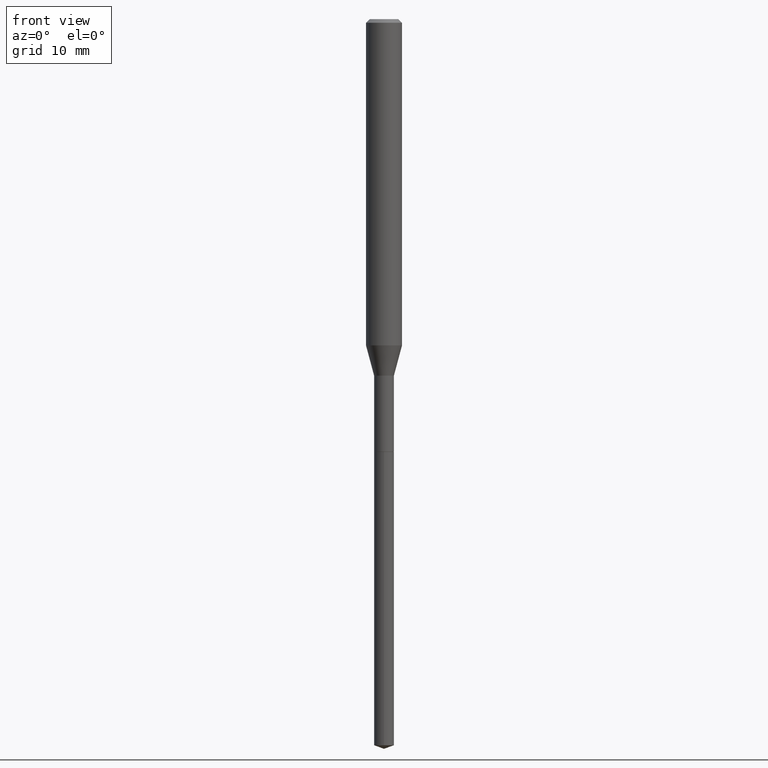
[diagram: clean part render]
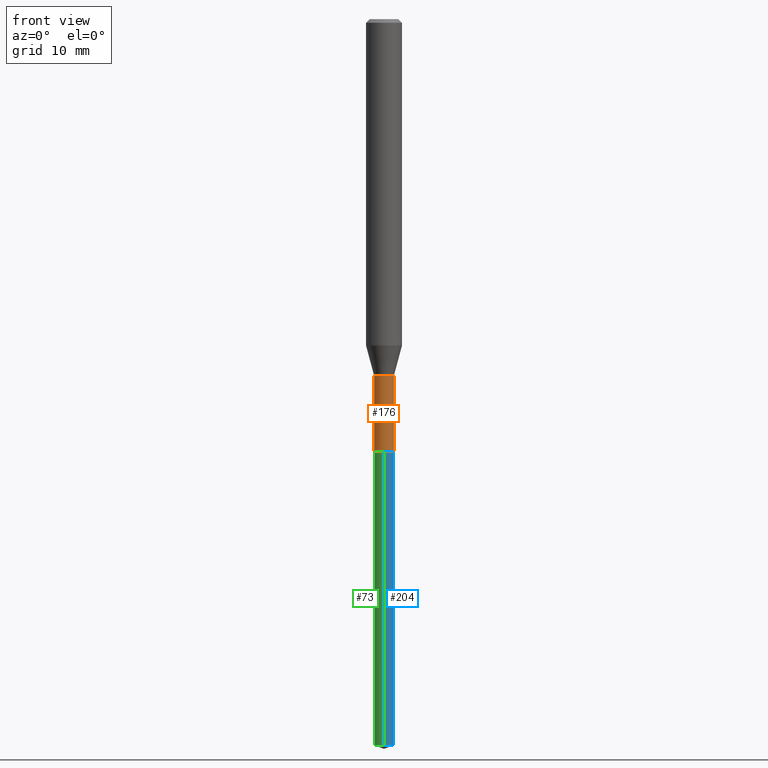
[diagram: same view with three faces highlighted in distinct colors, each labeled with its STEP entity id]
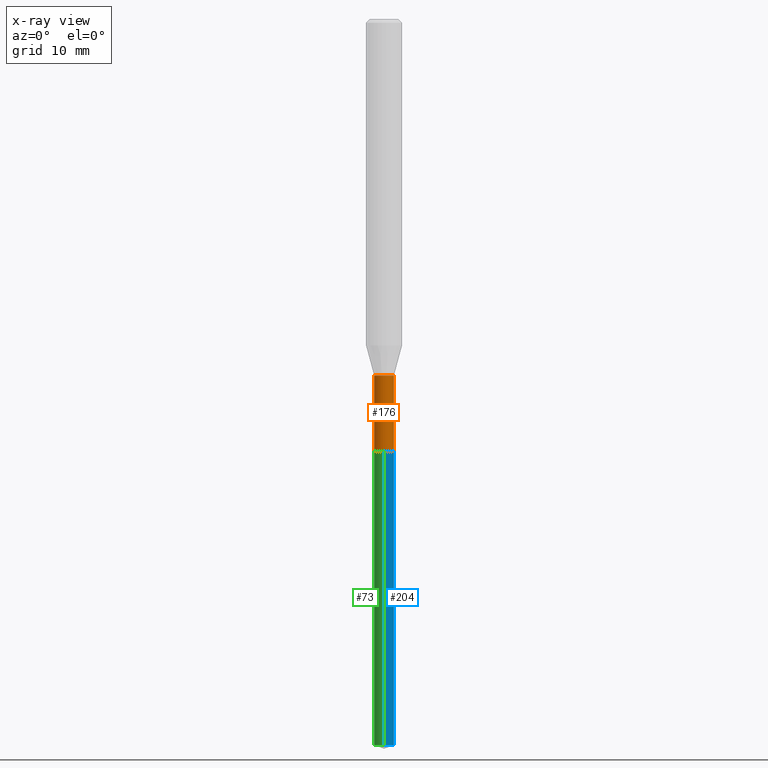
[diagram: x-ray of the same camera — body ghosted, the three highlighted faces saturated]
A machine part, front view with three faces highlighted in distinct colors.
The next image is the same camera in x-ray (body ghosted, the three faces saturated) — at least one of them is partly hidden behind the body in this view.
Their STEP definitions:

[orange] entity #176 — the highlighted cylindrical surface (edge-blend (fillet) strip) has radius 1.0998 mm, axis along (-0, 0, 1).
#2 = DIRECTION ( 'NONE',  ( 1.000000000000000000, -6.982962677686267499E-15, 4.876176775795935232E-29 ) ) ;
#24 = DIRECTION ( 'NONE',  ( -2.445468806185136877E-29, 3.491481338843145188E-15, 1.000000000000000000 ) ) ;
#30 = CARTESIAN_POINT ( 'NONE',  ( 0.04329999999999994270, -5.741741061727553218E-15, -1.557900000000000285 ) ) ;
#31 = CARTESIAN_POINT ( 'NONE',  ( 3.809795853155824737E-29, -5.439378777783737756E-15, -1.557900000000000285 ) ) ;
#40 = CYLINDRICAL_SURFACE ( 'NONE', #115, 0.04329999999999996352 ) ;
#45 = EDGE_CURVE ( 'NONE', #387, #308, #370, .T. ) ;
#51 = ORIENTED_EDGE ( 'NONE', *, *, #113, .F. ) ;
#55 = CARTESIAN_POINT ( 'NONE',  ( -0.04329999999999997740, -5.710252231045924288E-15, -1.889300000000000423 ) ) ;
#71 = AXIS2_PLACEMENT_3D ( 'NONE', #31, #132, #186 ) ;
#92 = ORIENTED_EDGE ( 'NONE', *, *, #45, .T. ) ;
#113 = EDGE_CURVE ( 'NONE', #167, #308, #224, .T. ) ;
#115 = AXIS2_PLACEMENT_3D ( 'NONE', #417, #338, #2 ) ;
#130 = LINE ( 'NONE', #219, #247 ) ;
#132 = DIRECTION ( 'NONE',  ( -2.445468806185136597E-29, 3.491481338843145583E-15, 1.000000000000000000 ) ) ;
#134 = CIRCLE ( 'NONE', #446, 0.04329999999999997740 ) ;
#135 = EDGE_CURVE ( 'NONE', #290, #167, #130, .T. ) ;
#139 = ORIENTED_EDGE ( 'NONE', *, *, #135, .F. ) ;
#167 = VERTEX_POINT ( 'NONE', #334 ) ;
#176 = ADVANCED_FACE ( 'NONE', ( #302 ), #40, .T. ) ;
#185 = DIRECTION ( 'NONE',  ( -2.445468806185136597E-29, 3.491481338843145583E-15, 1.000000000000000000 ) ) ;
#186 = DIRECTION ( 'NONE',  ( 1.000000000000000000, -6.982962677686277755E-15, 0.000000000000000000 ) ) ;
#219 = CARTESIAN_POINT ( 'NONE',  ( -0.04329999999999996352, 3.076650045841231213E-16, -2.129898894080372302E-30 ) ) ;
#224 = CIRCLE ( 'NONE', #71, 0.04329999999999994270 ) ;
#247 = VECTOR ( 'NONE', #24, 39.37007874015748143 ) ;
#290 = VERTEX_POINT ( 'NONE', #55 ) ;
#302 = FACE_OUTER_BOUND ( 'NONE', #327, .T. ) ;
#303 = VECTOR ( 'NONE', #483, 39.37007874015748143 ) ;
#308 = VERTEX_POINT ( 'NONE', #30 ) ;
#315 = ORIENTED_EDGE ( 'NONE', *, *, #362, .T. ) ;
#327 = EDGE_LOOP ( 'NONE', ( #139, #315, #92, #51 ) ) ;
#334 = CARTESIAN_POINT ( 'NONE',  ( -0.04329999999999994270, -5.710252231045924288E-15, -1.557900000000000285 ) ) ;
#338 = DIRECTION ( 'NONE',  ( -2.445468806185136597E-29, 3.491481338843145583E-15, 1.000000000000000000 ) ) ;
#350 = CARTESIAN_POINT ( 'NONE',  ( 0.04329999999999997740, -6.898817977420172327E-15, -1.889300000000000423 ) ) ;
#361 = DIRECTION ( 'NONE',  ( 1.000000000000000000, -6.982962677686272233E-15, 0.000000000000000000 ) ) ;
#362 = EDGE_CURVE ( 'NONE', #290, #387, #134, .T. ) ;
#370 = LINE ( 'NONE', #437, #303 ) ;
#387 = VERTEX_POINT ( 'NONE', #350 ) ;
#417 = CARTESIAN_POINT ( 'NONE',  ( 0.000000000000000000, 0.000000000000000000, 0.000000000000000000 ) ) ;
#437 = CARTESIAN_POINT ( 'NONE',  ( 0.04329999999999996352, -3.023622839438151170E-16, 2.111384543919638175E-30 ) ) ;
#438 = CARTESIAN_POINT ( 'NONE',  ( 4.620224215525580309E-29, -6.596455693476356864E-15, -1.889300000000000423 ) ) ;
#446 = AXIS2_PLACEMENT_3D ( 'NONE', #438, #185, #361 ) ;
#483 = DIRECTION ( 'NONE',  ( -2.445468806185136877E-29, 3.491481338843145188E-15, 1.000000000000000000 ) ) ;

[blue] entity #204 — the highlighted cylindrical surface (edge-blend (fillet) strip) has radius 1.0998 mm, axis along (-0, 0, 1).
#6 = DIRECTION ( 'NONE',  ( -2.445492202617929765E-29, 3.491447833819743351E-15, 1.000000000000000000 ) ) ;
#14 = DIRECTION ( 'NONE',  ( -2.445492202617929485E-29, 3.491447833819743351E-15, 1.000000000000000000 ) ) ;
#21 = VERTEX_POINT ( 'NONE', #180 ) ;
#57 = CARTESIAN_POINT ( 'NONE',  ( -3.023622839437690673E-16, -0.04330000000000659710, -1.889800000000000146 ) ) ;
#60 = EDGE_CURVE ( 'NONE', #282, #162, #481, .T. ) ;
#69 = EDGE_CURVE ( 'NONE', #128, #162, #445, .T. ) ;
#77 = ORIENTED_EDGE ( 'NONE', *, *, #60, .T. ) ;
#96 = DIRECTION ( 'NONE',  ( -6.982962677686265922E-15, -1.000000000000000000, 6.309117768277745325E-15 ) ) ;
#111 = DIRECTION ( 'NONE',  ( -2.445492202617929765E-29, 3.491447833819743351E-15, 1.000000000000000000 ) ) ;
#120 = CARTESIAN_POINT ( 'NONE',  ( 3.076650045842008734E-16, 0.04329999999998892374, -3.173240088856273733 ) ) ;
#121 = LINE ( 'NONE', #343, #416 ) ;
#128 = VERTEX_POINT ( 'NONE', #57 ) ;
#146 = ORIENTED_EDGE ( 'NONE', *, *, #384, .T. ) ;
#147 = FACE_OUTER_BOUND ( 'NONE', #396, .T. ) ;
#162 = VERTEX_POINT ( 'NONE', #375 ) ;
#168 = VECTOR ( 'NONE', #293, 39.37007874015748143 ) ;
#170 = CIRCLE ( 'NONE', #277, 0.04329999999999999127 ) ;
#179 = CARTESIAN_POINT ( 'NONE',  ( 7.760089679753951505E-29, -1.107926555222043350E-14, -3.173240088856273733 ) ) ;
#180 = CARTESIAN_POINT ( 'NONE',  ( -3.023622839437377594E-16, -0.04330000000001107269, -3.173240088856273733 ) ) ;
#204 = ADVANCED_FACE ( 'NONE', ( #147 ), #337, .T. ) ;
#207 = ORIENTED_EDGE ( 'NONE', *, *, #69, .F. ) ;
#238 = AXIS2_PLACEMENT_3D ( 'NONE', #295, #287, #96 ) ;
#252 = ORIENTED_EDGE ( 'NONE', *, *, #452, .F. ) ;
#263 = CARTESIAN_POINT ( 'NONE',  ( 3.076650045841695161E-16, 0.04329999999999339239, -1.889800000000000590 ) ) ;
#277 = AXIS2_PLACEMENT_3D ( 'NONE', #179, #6, #344 ) ;
#282 = VERTEX_POINT ( 'NONE', #120 ) ;
#283 = AXIS2_PLACEMENT_3D ( 'NONE', #457, #111, #485 ) ;
#287 = DIRECTION ( 'NONE',  ( -2.445492202617929765E-29, 3.491447833819743351E-15, 1.000000000000000000 ) ) ;
#293 = DIRECTION ( 'NONE',  ( -2.445492202617929485E-29, 3.491447833819743351E-15, 1.000000000000000000 ) ) ;
#295 = CARTESIAN_POINT ( 'NONE',  ( 4.621446949928671989E-29, -6.598201434145778368E-15, -1.889800000000000368 ) ) ;
#337 = CYLINDRICAL_SURFACE ( 'NONE', #283, 0.04329999999999999127 ) ;
#343 = CARTESIAN_POINT ( 'NONE',  ( -3.023622839437690673E-16, -0.04330000000000659710, -1.889800000000000146 ) ) ;
#344 = DIRECTION ( 'NONE',  ( -6.982962677686265922E-15, -1.000000000000000000, 0.000000000000000000 ) ) ;
#375 = CARTESIAN_POINT ( 'NONE',  ( 3.076650045842010706E-16, 0.04329999999999339239, -1.889800000000000590 ) ) ;
#384 = EDGE_CURVE ( 'NONE', #21, #282, #170, .T. ) ;
#396 = EDGE_LOOP ( 'NONE', ( #146, #77, #207, #252 ) ) ;
#416 = VECTOR ( 'NONE', #14, 39.37007874015748143 ) ;
#445 = CIRCLE ( 'NONE', #238, 0.04329999999999999127 ) ;
#452 = EDGE_CURVE ( 'NONE', #21, #128, #121, .T. ) ;
#457 = CARTESIAN_POINT ( 'NONE',  ( 4.621446949928671989E-29, -6.598201434145778368E-15, -1.889800000000000368 ) ) ;
#481 = LINE ( 'NONE', #263, #168 ) ;
#485 = DIRECTION ( 'NONE',  ( -6.982962677686265922E-15, -1.000000000000000000, 6.309117768277745325E-15 ) ) ;

[green] entity #73 — the highlighted cylindrical surface (edge-blend (fillet) strip) has radius 1.0998 mm, axis along (-0, 0, 1).
#11 = CARTESIAN_POINT ( 'NONE',  ( 7.760089679753951505E-29, -1.107926555222043350E-14, -3.173240088856273733 ) ) ;
#14 = DIRECTION ( 'NONE',  ( -2.445492202617929485E-29, 3.491447833819743351E-15, 1.000000000000000000 ) ) ;
#21 = VERTEX_POINT ( 'NONE', #180 ) ;
#29 = AXIS2_PLACEMENT_3D ( 'NONE', #255, #163, #398 ) ;
#57 = CARTESIAN_POINT ( 'NONE',  ( -3.023622839437690673E-16, -0.04330000000000659710, -1.889800000000000146 ) ) ;
#60 = EDGE_CURVE ( 'NONE', #282, #162, #481, .T. ) ;
#73 = ADVANCED_FACE ( 'NONE', ( #258 ), #331, .T. ) ;
#83 = ORIENTED_EDGE ( 'NONE', *, *, #452, .T. ) ;
#87 = ORIENTED_EDGE ( 'NONE', *, *, #269, .F. ) ;
#120 = CARTESIAN_POINT ( 'NONE',  ( 3.076650045842008734E-16, 0.04329999999998892374, -3.173240088856273733 ) ) ;
#121 = LINE ( 'NONE', #343, #416 ) ;
#128 = VERTEX_POINT ( 'NONE', #57 ) ;
#162 = VERTEX_POINT ( 'NONE', #375 ) ;
#163 = DIRECTION ( 'NONE',  ( -2.445492202617929765E-29, 3.491447833819743351E-15, 1.000000000000000000 ) ) ;
#165 = ORIENTED_EDGE ( 'NONE', *, *, #488, .T. ) ;
#168 = VECTOR ( 'NONE', #293, 39.37007874015748143 ) ;
#172 = EDGE_LOOP ( 'NONE', ( #365, #165, #83, #87 ) ) ;
#180 = CARTESIAN_POINT ( 'NONE',  ( -3.023622839437377594E-16, -0.04330000000001107269, -3.173240088856273733 ) ) ;
#196 = CIRCLE ( 'NONE', #225, 0.04329999999999999127 ) ;
#225 = AXIS2_PLACEMENT_3D ( 'NONE', #11, #389, #462 ) ;
#255 = CARTESIAN_POINT ( 'NONE',  ( 4.621446949928671989E-29, -6.598201434145778368E-15, -1.889800000000000368 ) ) ;
#258 = FACE_OUTER_BOUND ( 'NONE', #172, .T. ) ;
#261 = CARTESIAN_POINT ( 'NONE',  ( 4.621446949928671989E-29, -6.598201434145778368E-15, -1.889800000000000368 ) ) ;
#263 = CARTESIAN_POINT ( 'NONE',  ( 3.076650045841695161E-16, 0.04329999999999339239, -1.889800000000000590 ) ) ;
#269 = EDGE_CURVE ( 'NONE', #162, #128, #466, .T. ) ;
#282 = VERTEX_POINT ( 'NONE', #120 ) ;
#292 = DIRECTION ( 'NONE',  ( -2.445492202617929765E-29, 3.491447833819743351E-15, 1.000000000000000000 ) ) ;
#293 = DIRECTION ( 'NONE',  ( -2.445492202617929485E-29, 3.491447833819743351E-15, 1.000000000000000000 ) ) ;
#331 = CYLINDRICAL_SURFACE ( 'NONE', #477, 0.04329999999999999127 ) ;
#343 = CARTESIAN_POINT ( 'NONE',  ( -3.023622839437690673E-16, -0.04330000000000659710, -1.889800000000000146 ) ) ;
#365 = ORIENTED_EDGE ( 'NONE', *, *, #60, .F. ) ;
#375 = CARTESIAN_POINT ( 'NONE',  ( 3.076650045842010706E-16, 0.04329999999999339239, -1.889800000000000590 ) ) ;
#389 = DIRECTION ( 'NONE',  ( -2.445492202617929765E-29, 3.491447833819743351E-15, 1.000000000000000000 ) ) ;
#398 = DIRECTION ( 'NONE',  ( -6.982962677686265922E-15, -1.000000000000000000, 6.309117768277745325E-15 ) ) ;
#402 = DIRECTION ( 'NONE',  ( -6.982962677686265922E-15, -1.000000000000000000, 6.309117768277745325E-15 ) ) ;
#416 = VECTOR ( 'NONE', #14, 39.37007874015748143 ) ;
#452 = EDGE_CURVE ( 'NONE', #21, #128, #121, .T. ) ;
#462 = DIRECTION ( 'NONE',  ( -6.982962677686265922E-15, -1.000000000000000000, 0.000000000000000000 ) ) ;
#466 = CIRCLE ( 'NONE', #29, 0.04329999999999999127 ) ;
#477 = AXIS2_PLACEMENT_3D ( 'NONE', #261, #292, #402 ) ;
#481 = LINE ( 'NONE', #263, #168 ) ;
#488 = EDGE_CURVE ( 'NONE', #282, #21, #196, .T. ) ;